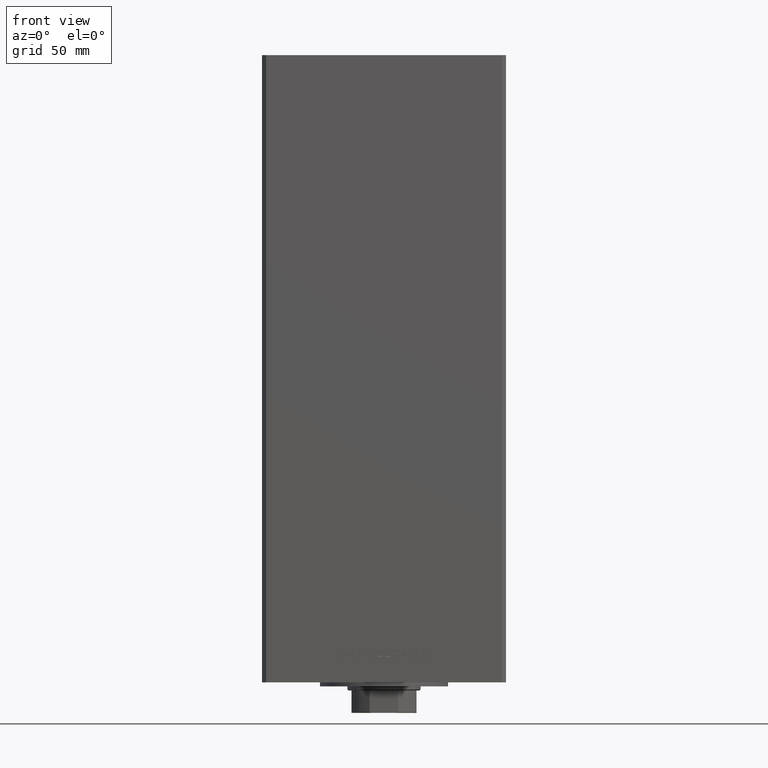
[diagram: clean part render]
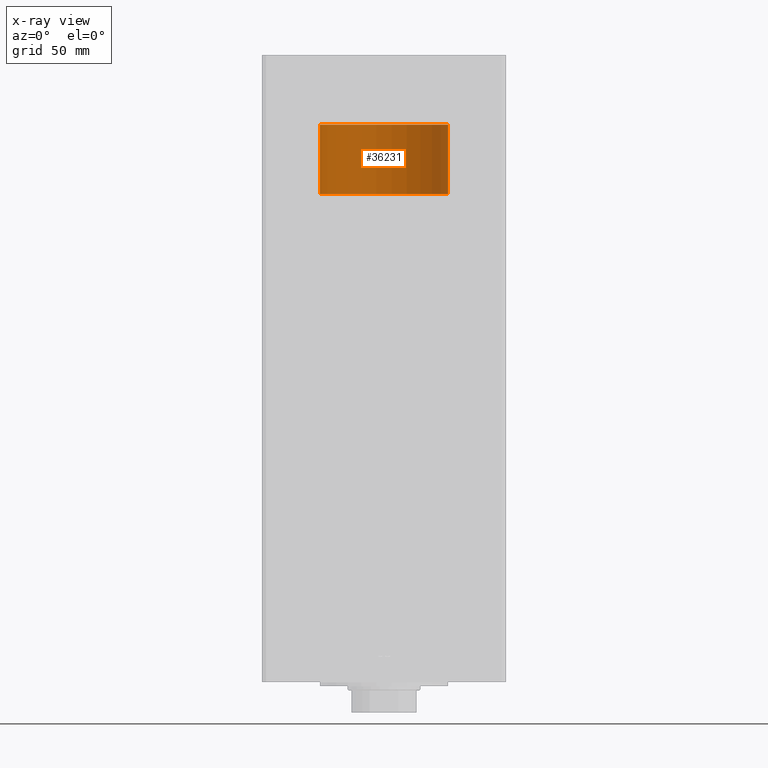
[diagram: x-ray — body ghosted, one internal face saturated and labeled with its STEP entity id]
A machine part, front view, then the same camera in x-ray: the body is ghosted and one INTERNAL B-rep face — a face not visible from any outside direction — is saturated and labeled: STEP entity #36231.
In plain terms, the highlighted cylindrical surface (partial cylindrical patch) has radius 31.5 mm, axis along (0, -0, 1).
Its self-contained STEP definition (entity closure, byte-faithful):
#546 = DIRECTION ( 'NONE',  ( -0.000000000000000000, -0.000000000000000000, -1.000000000000000000 ) ) ;
#1381 = DIRECTION ( 'NONE',  ( -1.000000000000000000, 0.000000000000000000, 0.000000000000000000 ) ) ;
#1425 = LINE ( 'NONE', #39453, #30945 ) ;
#1625 = CIRCLE ( 'NONE', #5604, 31.50000000000000000 ) ;
#3457 = CARTESIAN_POINT ( 'NONE',  ( -31.50000000000000000, 0.000000000000000000, 34.25000000000000000 ) ) ;
#5604 = AXIS2_PLACEMENT_3D ( 'NONE', #10860, #26032, #11102 ) ;
#5870 = EDGE_CURVE ( 'NONE', #24386, #44650, #39089, .T. ) ;
#9062 = CARTESIAN_POINT ( 'NONE',  ( -31.50000000000000000, 0.000000000000000000, 0.000000000000000000 ) ) ;
#9608 = DIRECTION ( 'NONE',  ( -0.000000000000000000, -0.000000000000000000, -1.000000000000000000 ) ) ;
#9852 = EDGE_CURVE ( 'NONE', #44650, #17807, #26411, .T. ) ;
#10841 = ORIENTED_EDGE ( 'NONE', *, *, #9852, .F. ) ;
#10860 = CARTESIAN_POINT ( 'NONE',  ( 0.000000000000000000, 0.000000000000000000, 0.000000000000000000 ) ) ;
#11102 = DIRECTION ( 'NONE',  ( 1.000000000000000000, 0.000000000000000000, 0.000000000000000000 ) ) ;
#14473 = EDGE_LOOP ( 'NONE', ( #35148, #29644, #46418, #10841 ) ) ;
#17807 = VERTEX_POINT ( 'NONE', #9062 ) ;
#20274 = CARTESIAN_POINT ( 'NONE',  ( 0.000000000000000000, 0.000000000000000000, 34.25000000000000000 ) ) ;
#22350 = CARTESIAN_POINT ( 'NONE',  ( 31.50000000000000000, 3.857637417314162689E-15, 0.000000000000000000 ) ) ;
#23993 = CYLINDRICAL_SURFACE ( 'NONE', #38207, 31.50000000000000000 ) ;
#24386 = VERTEX_POINT ( 'NONE', #30804 ) ;
#24578 = CARTESIAN_POINT ( 'NONE',  ( 0.000000000000000000, 0.000000000000000000, 34.25000000000000000 ) ) ;
#26032 = DIRECTION ( 'NONE',  ( 0.000000000000000000, 0.000000000000000000, 1.000000000000000000 ) ) ;
#26411 = LINE ( 'NONE', #30381, #40009 ) ;
#28589 = EDGE_CURVE ( 'NONE', #24386, #39560, #1425, .T. ) ;
#29644 = ORIENTED_EDGE ( 'NONE', *, *, #28589, .T. ) ;
#30381 = CARTESIAN_POINT ( 'NONE',  ( -31.50000000000000000, 0.000000000000000000, 34.25000000000000000 ) ) ;
#30804 = CARTESIAN_POINT ( 'NONE',  ( 31.50000000000000000, 3.857637417314162689E-15, 34.25000000000000000 ) ) ;
#30847 = EDGE_CURVE ( 'NONE', #39560, #17807, #1625, .T. ) ;
#30945 = VECTOR ( 'NONE', #9608, 1000.000000000000000 ) ;
#31146 = AXIS2_PLACEMENT_3D ( 'NONE', #24578, #39736, #43224 ) ;
#35148 = ORIENTED_EDGE ( 'NONE', *, *, #5870, .F. ) ;
#35443 = DIRECTION ( 'NONE',  ( -0.000000000000000000, -0.000000000000000000, -1.000000000000000000 ) ) ;
#36231 = ADVANCED_FACE ( 'NONE', ( #39162 ), #23993, .T. ) ;
#38207 = AXIS2_PLACEMENT_3D ( 'NONE', #20274, #35443, #1381 ) ;
#39089 = CIRCLE ( 'NONE', #31146, 31.50000000000000000 ) ;
#39162 = FACE_OUTER_BOUND ( 'NONE', #14473, .T. ) ;
#39453 = CARTESIAN_POINT ( 'NONE',  ( 31.50000000000000000, 3.857637417314162689E-15, 34.25000000000000000 ) ) ;
#39560 = VERTEX_POINT ( 'NONE', #22350 ) ;
#39736 = DIRECTION ( 'NONE',  ( 0.000000000000000000, 0.000000000000000000, 1.000000000000000000 ) ) ;
#40009 = VECTOR ( 'NONE', #546, 1000.000000000000000 ) ;
#43224 = DIRECTION ( 'NONE',  ( 1.000000000000000000, 0.000000000000000000, 0.000000000000000000 ) ) ;
#44650 = VERTEX_POINT ( 'NONE', #3457 ) ;
#46418 = ORIENTED_EDGE ( 'NONE', *, *, #30847, .T. ) ;